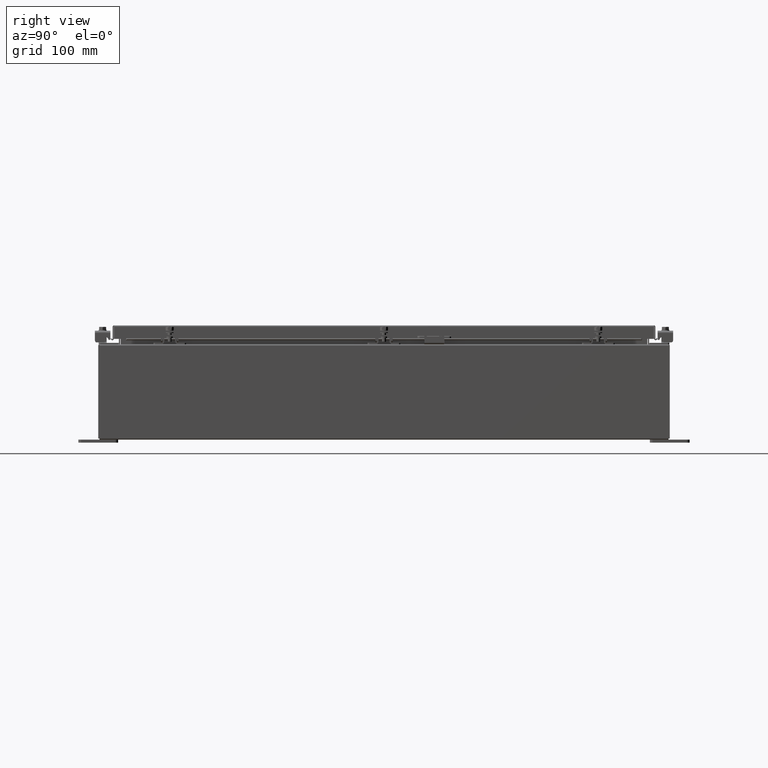
[diagram: clean part render]
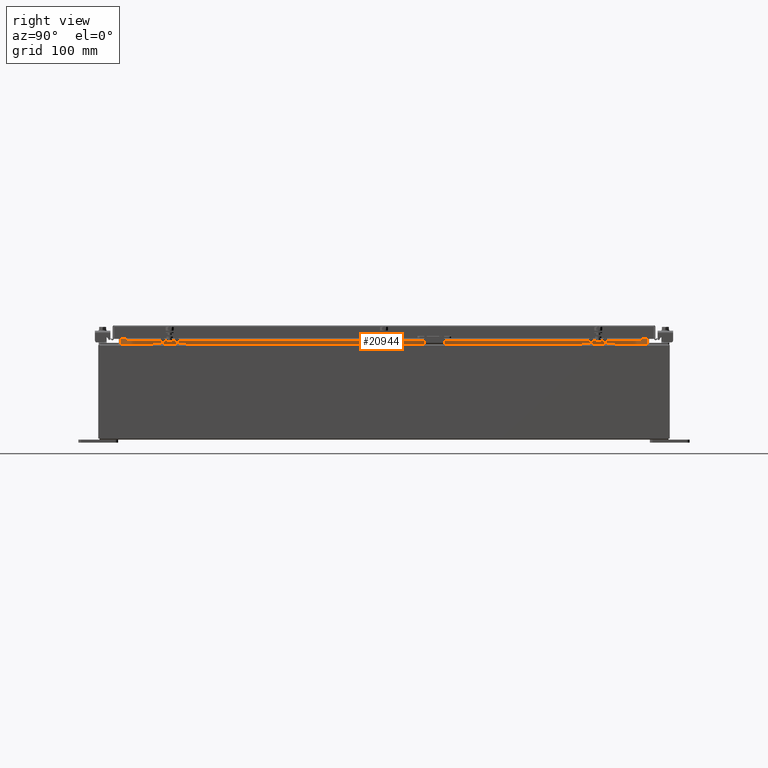
[diagram: same view with one face highlighted and labeled with its STEP entity id]
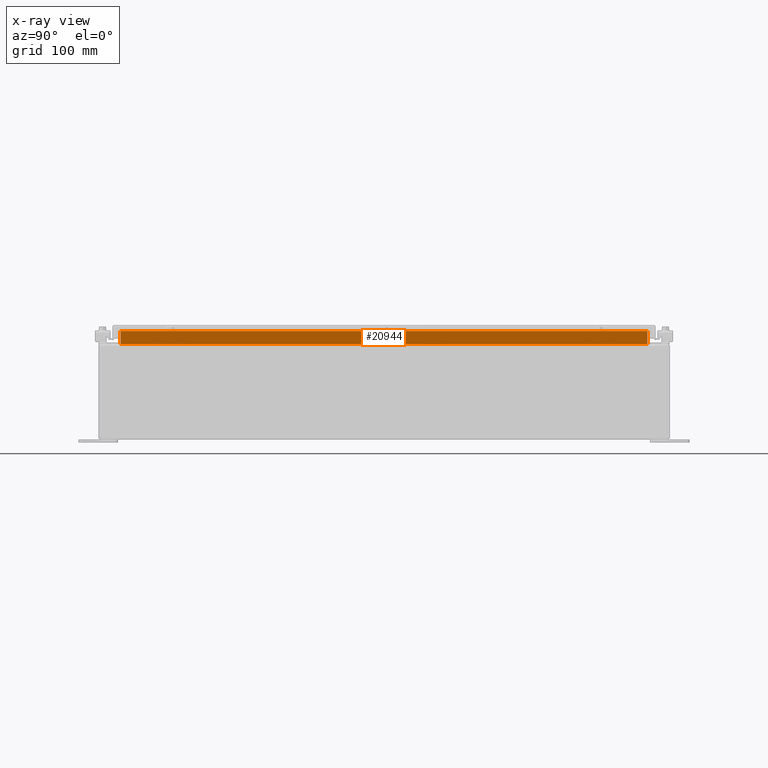
[diagram: x-ray of the same camera — body ghosted, the highlighted face saturated]
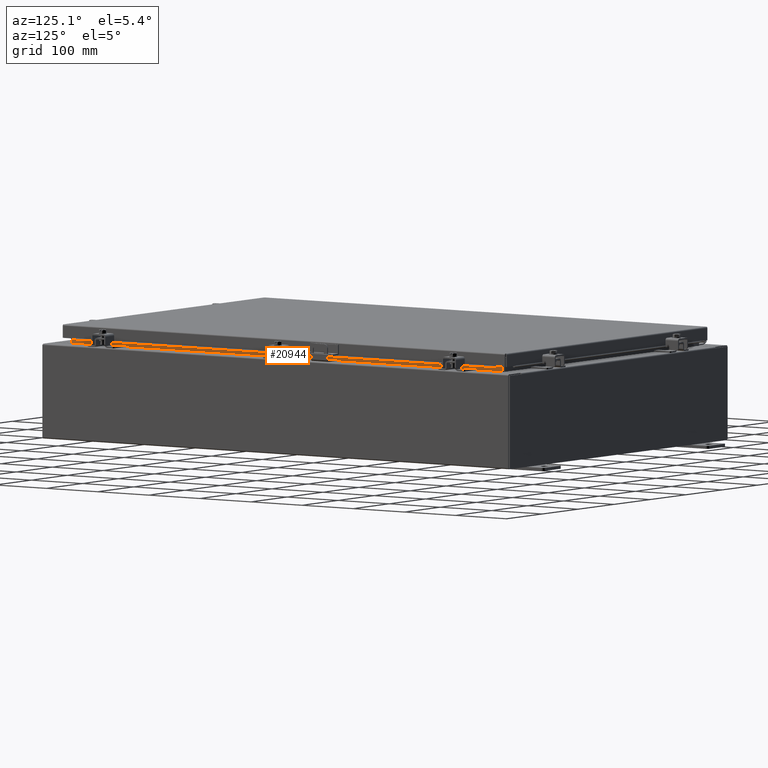
[diagram: same view with one face highlighted and labeled with its STEP entity id]
A machine part, right view. The second image highlights one B-rep face of the part: STEP entity #20944.
The next image is the same camera in x-ray: the body ghosted, the highlighted face saturated — about 0% of this face is hidden behind the body in this view.
A second angle (auxiliary view) of the same face is appended — the face is thin or edge-on in the first view.
In plain terms, the highlighted planar face has unit normal (1, 0, -0).
Its self-contained STEP definition (entity closure, byte-faithful):
#237 = EDGE_CURVE ( 'NONE', #31083, #32996, #38977, .T. ) ;
#2414 = VERTEX_POINT ( 'NONE', #26057 ) ;
#4470 = ORIENTED_EDGE ( 'NONE', *, *, #34031, .F. ) ;
#5989 = LINE ( 'NONE', #26097, #39586 ) ;
#6133 = CARTESIAN_POINT ( 'NONE',  ( 10.69970000000002800, 16.59375000000000000, 6.762900000000009900 ) ) ;
#7458 = EDGE_LOOP ( 'NONE', ( #4470, #21885, #16686, #32887 ) ) ;
#7704 = VERTEX_POINT ( 'NONE', #40468 ) ;
#8927 = FACE_OUTER_BOUND ( 'NONE', #7458, .T. ) ;
#9877 = PLANE ( 'NONE',  #29028 ) ;
#9924 = DIRECTION ( 'NONE',  ( 1.317049126888985600E-016, -1.000000000000000000, 6.585245634444928200E-017 ) ) ;
#10399 = DIRECTION ( 'NONE',  ( -4.723826639860392000E-015, -0.0000000000000000000, -1.000000000000000000 ) ) ;
#10517 = VECTOR ( 'NONE', #10399, 39.37007874015748100 ) ;
#13035 = VECTOR ( 'NONE', #33842, 39.37007874015748100 ) ;
#16686 = ORIENTED_EDGE ( 'NONE', *, *, #19292, .F. ) ;
#19292 = EDGE_CURVE ( 'NONE', #2414, #31083, #40104, .T. ) ;
#19558 = CARTESIAN_POINT ( 'NONE',  ( 10.69969999999999300, 0.0000000000000000000, -5.054352789851420600E-014 ) ) ;
#19688 = DIRECTION ( 'NONE',  ( -4.723826639860392000E-015, 0.0000000000000000000, -1.000000000000000000 ) ) ;
#20944 = ADVANCED_FACE ( 'NONE', ( #8927 ), #9877, .T. ) ;
#21885 = ORIENTED_EDGE ( 'NONE', *, *, #237, .F. ) ;
#21986 = CARTESIAN_POINT ( 'NONE',  ( 10.69970000000002500, -16.59375000000000000, 6.850600000000010700 ) ) ;
#22765 = VECTOR ( 'NONE', #35222, 39.37007874015748100 ) ;
#26057 = CARTESIAN_POINT ( 'NONE',  ( 10.69970000000002100, -16.59375000000000000, 5.938300000000011500 ) ) ;
#26097 = CARTESIAN_POINT ( 'NONE',  ( 10.69970000000002000, 16.59375000000000000, 5.938300000000010600 ) ) ;
#29028 = AXIS2_PLACEMENT_3D ( 'NONE', #19558, #39194, #19688 ) ;
#29847 = CARTESIAN_POINT ( 'NONE',  ( 10.69970000000002100, 16.59375000000000000, 5.925300000000009800 ) ) ;
#30769 = EDGE_CURVE ( 'NONE', #7704, #2414, #5989, .T. ) ;
#31083 = VERTEX_POINT ( 'NONE', #34619 ) ;
#32887 = ORIENTED_EDGE ( 'NONE', *, *, #30769, .F. ) ;
#32996 = VERTEX_POINT ( 'NONE', #6133 ) ;
#33842 = DIRECTION ( 'NONE',  ( 0.0000000000000000000, 1.000000000000000000, 0.0000000000000000000 ) ) ;
#34031 = EDGE_CURVE ( 'NONE', #32996, #7704, #35481, .T. ) ;
#34619 = CARTESIAN_POINT ( 'NONE',  ( 10.69970000000002500, -16.59375000000000000, 6.762900000000009900 ) ) ;
#35222 = DIRECTION ( 'NONE',  ( 4.723826639860403100E-015, -0.0000000000000000000, 1.000000000000000000 ) ) ;
#35481 = LINE ( 'NONE', #29847, #10517 ) ;
#37181 = CARTESIAN_POINT ( 'NONE',  ( 10.69970000000002800, -16.59375000000000000, 6.762900000000009900 ) ) ;
#38977 = LINE ( 'NONE', #37181, #13035 ) ;
#39194 = DIRECTION ( 'NONE',  ( 1.000000000000000000, 0.0000000000000000000, -4.723826639860392000E-015 ) ) ;
#39586 = VECTOR ( 'NONE', #9924, 39.37007874015748100 ) ;
#40104 = LINE ( 'NONE', #21986, #22765 ) ;
#40468 = CARTESIAN_POINT ( 'NONE',  ( 10.69970000000002100, 16.59375000000000000, 5.938300000000011500 ) ) ;